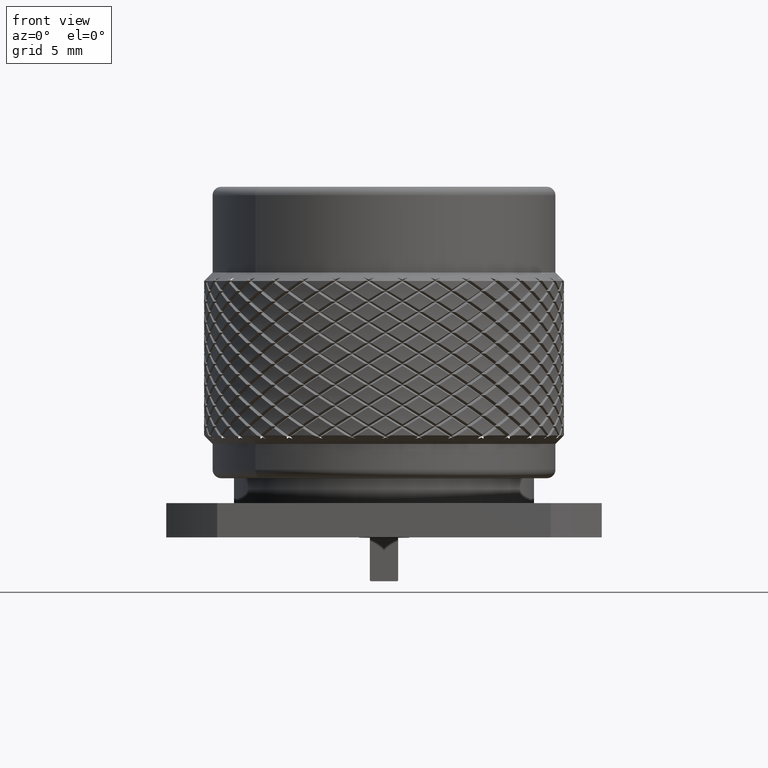
[diagram: clean part render]
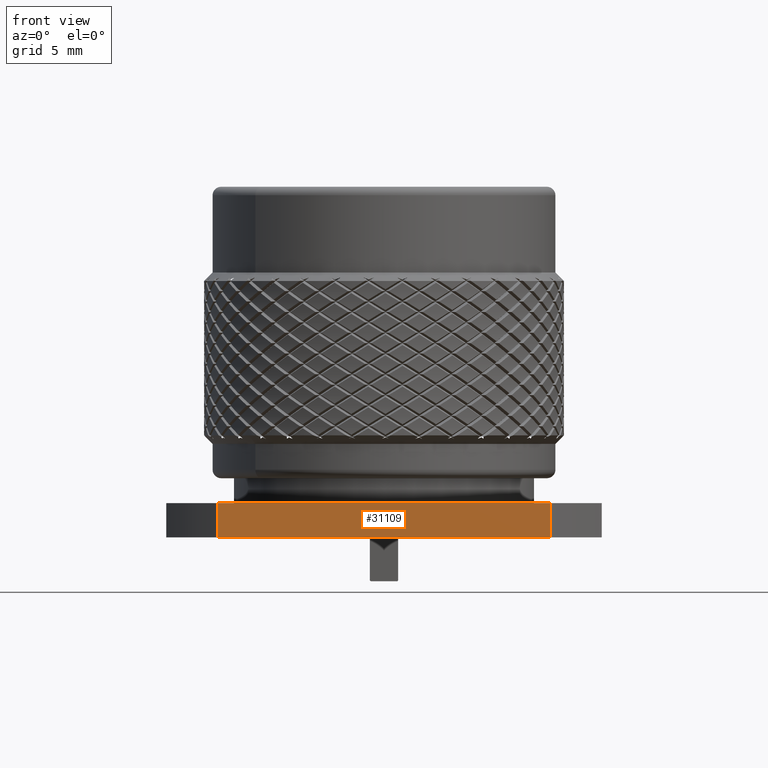
[diagram: same view with one face highlighted and labeled with its STEP entity id]
A machine part, front view. The second image highlights one B-rep face of the part: STEP entity #31109.
In plain terms, the highlighted planar face has unit normal (0, -1, 0).
Its self-contained STEP definition (entity closure, byte-faithful):
#3134 = VERTEX_POINT ( 'NONE', #89222 ) ;
#4773 = LINE ( 'NONE', #112286, #131769 ) ;
#5115 = EDGE_CURVE ( 'NONE', #73727, #3134, #15388, .T. ) ;
#6335 = DIRECTION ( 'NONE',  ( -0.000000000000000000, -0.000000000000000000, -1.000000000000000000 ) ) ;
#9483 = PLANE ( 'NONE',  #70254 ) ;
#10260 = DIRECTION ( 'NONE',  ( 0.000000000000000000, -1.000000000000000000, 0.000000000000000000 ) ) ;
#15388 = LINE ( 'NONE', #26504, #30209 ) ;
#26504 = CARTESIAN_POINT ( 'NONE',  ( 0.000000000000000000, -12.69999999999999929, 0.000000000000000000 ) ) ;
#30090 = VERTEX_POINT ( 'NONE', #64657 ) ;
#30209 = VECTOR ( 'NONE', #52501, 1000.000000000000000 ) ;
#31109 = ADVANCED_FACE ( 'NONE', ( #69558 ), #9483, .T. ) ;
#31256 = VECTOR ( 'NONE', #140161, 1000.000000000000000 ) ;
#38141 = ORIENTED_EDGE ( 'NONE', *, *, #5115, .F. ) ;
#46617 = DIRECTION ( 'NONE',  ( 0.000000000000000000, -0.000000000000000000, -1.000000000000000000 ) ) ;
#46857 = CARTESIAN_POINT ( 'NONE',  ( -9.731906288081500378, -12.70000000000000107, 0.000000000000000000 ) ) ;
#52501 = DIRECTION ( 'NONE',  ( -1.000000000000000000, 0.000000000000000000, 0.000000000000000000 ) ) ;
#55966 = EDGE_CURVE ( 'NONE', #3134, #100416, #56387, .T. ) ;
#56387 = LINE ( 'NONE', #46857, #31256 ) ;
#57714 = CARTESIAN_POINT ( 'NONE',  ( -12.70000000000000107, -12.70000000000000107, -8.000000000000000000 ) ) ;
#64622 = EDGE_LOOP ( 'NONE', ( #38141, #73336, #71120, #148176 ) ) ;
#64657 = CARTESIAN_POINT ( 'NONE',  ( 9.731906288081482614, -12.70000000000000107, 1.999999999999999556 ) ) ;
#69558 = FACE_OUTER_BOUND ( 'NONE', #64622, .T. ) ;
#70254 = AXIS2_PLACEMENT_3D ( 'NONE', #57714, #10260, #46617 ) ;
#71120 = ORIENTED_EDGE ( 'NONE', *, *, #144118, .F. ) ;
#73336 = ORIENTED_EDGE ( 'NONE', *, *, #143108, .F. ) ;
#73727 = VERTEX_POINT ( 'NONE', #124534 ) ;
#80531 = CARTESIAN_POINT ( 'NONE',  ( -9.731906288081482614, -12.70000000000000107, 1.999999999999999556 ) ) ;
#89222 = CARTESIAN_POINT ( 'NONE',  ( -9.731906288081512812, -12.69999999999999929, 0.000000000000000000 ) ) ;
#91351 = VECTOR ( 'NONE', #146462, 1000.000000000000000 ) ;
#100416 = VERTEX_POINT ( 'NONE', #80531 ) ;
#112286 = CARTESIAN_POINT ( 'NONE',  ( 9.731906288081500378, -12.70000000000000107, 0.000000000000000000 ) ) ;
#121970 = CARTESIAN_POINT ( 'NONE',  ( -12.70000000000000107, -12.70000000000000107, 1.999999999999999556 ) ) ;
#124534 = CARTESIAN_POINT ( 'NONE',  ( 9.731906288081512812, -12.69999999999999929, 0.000000000000000000 ) ) ;
#131769 = VECTOR ( 'NONE', #6335, 1000.000000000000000 ) ;
#140161 = DIRECTION ( 'NONE',  ( 0.000000000000000000, 0.000000000000000000, 1.000000000000000000 ) ) ;
#143108 = EDGE_CURVE ( 'NONE', #30090, #73727, #4773, .T. ) ;
#144118 = EDGE_CURVE ( 'NONE', #100416, #30090, #145675, .T. ) ;
#145675 = LINE ( 'NONE', #121970, #91351 ) ;
#146462 = DIRECTION ( 'NONE',  ( 1.000000000000000000, 0.000000000000000000, 0.000000000000000000 ) ) ;
#148176 = ORIENTED_EDGE ( 'NONE', *, *, #55966, .F. ) ;